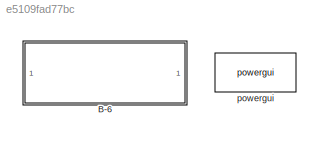
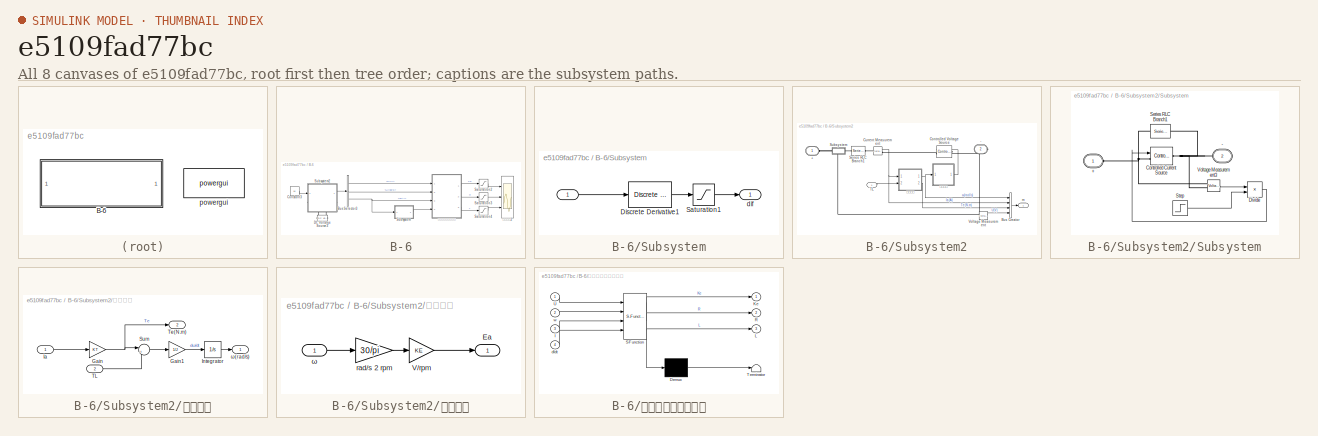
[diagram: thumbnail index - all 8 canvases of the model, root first then tree order]
MODEL slx_e5109fad77bc
KIND model
CONFIG AbsTol = auto
CONFIG EnableMultiTasking = off
CONFIG FixedStep = auto
CONFIG MaxStep = 1e-4
CONFIG MinStep = auto
CONFIG RelTol = 1e-6
CONFIG SampleTimeConstraint = Unconstrained
CONFIG Solver = VariableStepAuto
CONFIG SolverName = VariableStepAuto
CONFIG StartTime = 0.0
CONFIG StopFcn = %CELEC_plot;
CONFIG StopTime = 1
BLOCK [SubSystem] B-6
  Ports = []
  RequestExecContextInheritance = off
BLOCK [BusSelector] B-6/Bus Selector3
  OutputAsBus = off
  OutputSignals = U(V),ω(rad/s),Ia(A)
  Ports = [1, 3]
BLOCK [Constant] B-6/Constant3
  Value = 10
BLOCK [Reference] B-6/DC Voltage Source3  REF=powerlib/Electrical
Sources/DC Voltage Source
  Ports = [0, 0, 0, 0, 0, 1, 1]
  SourceBlock = powerlib/Electrical\nSources/DC Voltage Source
  SourceProductBaseCode = PS
  SourceProductName = Simscape Power Systems
  SourceType = DC Voltage Source
BLOCK [Saturate] B-6/Saturation2
  InputPortMap = u0
  LowerLimit = 0
  Ports = [1, 1]
  UpperLimit = 5
BLOCK [Saturate] B-6/Saturation3
  InputPortMap = u0
  LowerLimit = 0
  Ports = [1, 1]
  UpperLimit = 5
BLOCK [Saturate] B-6/Saturation4
  InputPortMap = u0
  LowerLimit = 0
  Ports = [1, 1]
  UpperLimit = 0.1
BLOCK [SubSystem] B-6/Subsystem
  Ports = [1, 1]
  RequestExecContextInheritance = off
BLOCK [Inport] B-6/Subsystem/ 
  IconDisplay = Port number
BLOCK [Reference] B-6/Subsystem/Discrete Derivative1  REF=simulink/Discrete/Discrete Derivative
  Ports = [1, 1]
  SourceBlock = simulink/Discrete/Discrete Derivative
  SourceProductBaseCode = SL
  SourceProductName = Simulink
  SourceType = Discrete Derivative
BLOCK [Saturate] B-6/Subsystem/Saturation1
  InputPortMap = u0
  LowerLimit = -1000
  Ports = [1, 1]
  UpperLimit = 1000
BLOCK [Outport] B-6/Subsystem/dif
  IconDisplay = Port number
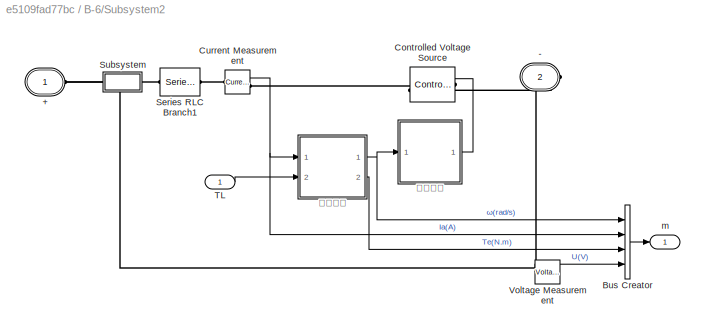
BLOCK [SubSystem] B-6/Subsystem2
  Ports = [1, 1, 0, 0, 0, 1, 1]
  RequestExecContextInheritance = off
BLOCK [PMIOPort] B-6/Subsystem2/+
  Side = Left
  Tag = PMCPort
BLOCK [PMIOPort] B-6/Subsystem2/-
  Port = 2
  Side = Right
  Tag = PMCPort
BLOCK [BusCreator] B-6/Subsystem2/Bus Creator
  DisplayOption = bar
  InheritFromInputs = on
  Inputs = 4
  Ports = [4, 1]
BLOCK [Reference] B-6/Subsystem2/Controlled Voltage Source  REF=powerlib/Electrical
Sources/Controlled Voltage Source
  Ports = [1, 0, 0, 0, 0, 1, 1]
  SourceBlock = powerlib/Electrical\nSources/Controlled Voltage Source
  SourceProductBaseCode = PS
  SourceProductName = Simscape Power Systems
  SourceType = Controlled Voltage Source
BLOCK [Reference] B-6/Subsystem2/Current Measurement  REF=powerlib/Measurements/Current Measurement
  Ports = [0, 1, 0, 0, 0, 1, 1]
  SourceBlock = powerlib/Measurements/Current Measurement
  SourceProductBaseCode = PS
  SourceProductName = Simscape Power Systems
  SourceType = Current Measurement
  UserDataPersistent = on
BLOCK [Reference] B-6/Subsystem2/Series RLC Branch1  REF=powerlib/Elements/Series RLC Branch
  Ports = [0, 0, 0, 0, 0, 1, 1]
  SourceBlock = powerlib/Elements/Series RLC Branch
  SourceProductBaseCode = PS
  SourceProductName = Simscape Power Systems
  SourceType = Series RLC Branch
BLOCK [SubSystem] B-6/Subsystem2/Subsystem
  Ports = [0, 0, 0, 0, 0, 1, 1]
  RequestExecContextInheritance = off
BLOCK [PMIOPort] B-6/Subsystem2/Subsystem/+
  Side = Left
  Tag = PMCPort
BLOCK [PMIOPort] B-6/Subsystem2/Subsystem/-
  Port = 2
  Side = Right
  Tag = PMCPort
BLOCK [Reference] B-6/Subsystem2/Subsystem/Controlled Current Source  REF=powerlib/Electrical
Sources/Controlled Current Source
  Ports = [1, 0, 0, 0, 0, 1, 1]
  SourceBlock = powerlib/Electrical\nSources/Controlled Current Source
  SourceProductBaseCode = PS
  SourceProductName = Simscape Power Systems
  SourceType = Controlled Current Source
BLOCK [Product] B-6/Subsystem2/Subsystem/Divide
  InputSameDT = off
  Inputs = */
  OutDataTypeStr = Inherit: Inherit via internal rule
  Ports = [2, 1]
  RndMeth = Floor
  SaturateOnIntegerOverflow = off
BLOCK [Reference] B-6/Subsystem2/Subsystem/Series RLC Branch1  REF=powerlib/Elements/Series RLC Branch
  Ports = [0, 0, 0, 0, 0, 1, 1]
  SourceBlock = powerlib/Elements/Series RLC Branch
  SourceProductBaseCode = PS
  SourceProductName = Simscape Power Systems
  SourceType = Series RLC Branch
BLOCK [Step] B-6/Subsystem2/Subsystem/Step
  After = R*2
  Before = R
  SampleTime = 0
  Time = 0.5
BLOCK [Reference] B-6/Subsystem2/Subsystem/Voltage Measurement3  REF=powerlib/Measurements/Voltage Measurement
  Ports = [0, 1, 0, 0, 0, 2]
  SourceBlock = powerlib/Measurements/Voltage Measurement
  SourceProductBaseCode = PS
  SourceProductName = Simscape Power Systems
  SourceType = Voltage Measurement
  UserDataPersistent = on
BLOCK [Inport] B-6/Subsystem2/TL
  IconDisplay = Port number
BLOCK [Reference] B-6/Subsystem2/Voltage Measurement  REF=powerlib/Measurements/Voltage Measurement
  Ports = [0, 1, 0, 0, 0, 2]
  SourceBlock = powerlib/Measurements/Voltage Measurement
  SourceProductBaseCode = PS
  SourceProductName = Simscape Power Systems
  SourceType = Voltage Measurement
  UserDataPersistent = on
BLOCK [Outport] B-6/Subsystem2/m
  IconDisplay = Port number
BLOCK [SubSystem] B-6/Subsystem2/机械方程
  Ports = [2, 2]
  RequestExecContextInheritance = off
BLOCK [Gain] B-6/Subsystem2/机械方程/Gain
  Gain = KT
  OutDataTypeStr = Inherit: Inherit via internal rule
  ParamDataTypeStr = Inherit: Inherit via internal rule
  SaturateOnIntegerOverflow = off
BLOCK [Gain] B-6/Subsystem2/机械方程/Gain1
  Gain = 1/J
  OutDataTypeStr = Inherit: Inherit via internal rule
  ParamDataTypeStr = Inherit: Inherit via internal rule
  SaturateOnIntegerOverflow = off
BLOCK [Inport] B-6/Subsystem2/机械方程/Ia
  IconDisplay = Port number
BLOCK [Integrator] B-6/Subsystem2/机械方程/Integrator
  Ports = [1, 1]
BLOCK [Sum] B-6/Subsystem2/机械方程/Sum
  IconShape = round
  InputSameDT = off
  Inputs = |+-
  OutDataTypeStr = Inherit: Inherit via internal rule
  Ports = [2, 1]
  SaturateOnIntegerOverflow = off
BLOCK [Inport] B-6/Subsystem2/机械方程/TL
  IconDisplay = Port number
  Port = 2
BLOCK [Outport] B-6/Subsystem2/机械方程/Te(N.m)
  IconDisplay = Port number
  Port = 2
BLOCK [Outport] B-6/Subsystem2/机械方程/ω(rad//s)
  IconDisplay = Port number
BLOCK [SubSystem] B-6/Subsystem2/电气方程
  Ports = [1, 1]
  RequestExecContextInheritance = off
BLOCK [Outport] B-6/Subsystem2/电气方程/Ea
  IconDisplay = Port number
BLOCK [Gain] B-6/Subsystem2/电气方程/V//rpm
  Gain = KE
  OutDataTypeStr = Inherit: Inherit via internal rule
  ParamDataTypeStr = Inherit: Inherit via internal rule
  SaturateOnIntegerOverflow = off
BLOCK [Gain] B-6/Subsystem2/电气方程/rad//s 2 rpm
  Gain = 30/pi
  OutDataTypeStr = Inherit: Inherit via internal rule
  ParamDataTypeStr = Inherit: Inherit via internal rule
  SaturateOnIntegerOverflow = off
BLOCK [Inport] B-6/Subsystem2/电气方程/ω
  IconDisplay = Port number
BLOCK [Scope] B-6/参数辨识2
  Floating = off
  NumInputPorts = 3
  Ports = [3]
  ScopeSpecificationString = Simulink.scopes.TimeScopeBlockCfg('CurrentConfiguration', extmgr.ConfigurationSet(extmgr.Configuration('Core','General UI',true),extmgr.Configuration('Core','Source UI',true),extmgr.Configuration('Sources','WiredSimulink',true,'DataLoggingVariableName','ScopeData4'),extmgr.Configuration('Visuals','Time Domain',true,'SerializedDisplays',{struct('MinYLimReal','-0.625','MaxYLimReal','5.625','YLabelRe...<+2761ch>
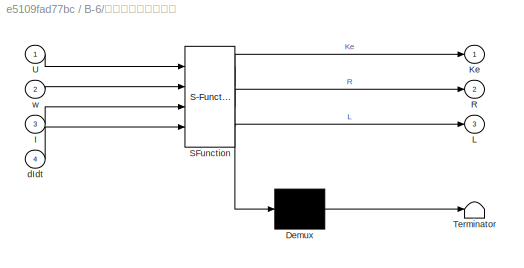
BLOCK [SubSystem] B-6/最小二乘法参数辨识
  ErrorFcn = Stateflow.Translate.translate
  PermitHierarchicalResolution = ExplicitOnly
  Ports = [4, 3]
  RequestExecContextInheritance = off
  SFBlockType = MATLAB Function
  TreatAsAtomicUnit = on
BLOCK [Demux] B-6/最小二乘法参数辨识/ Demux 
  Outputs = 1
  Ports = [1, 1]
BLOCK [S-Function] B-6/最小二乘法参数辨识/ SFunction 
  EnableBusSupport = on
  FunctionName = sf_sfun
  PortCounts = [4 4]
  Ports = [4, 4]
  SFcnIsStateOwnerBlock = off
  SFunctionDeploymentMode = off
  Tag = Stateflow S-Function B_6 2
BLOCK [Terminator] B-6/最小二乘法参数辨识/ Terminator 
BLOCK [Inport] B-6/最小二乘法参数辨识/I
  IconDisplay = Port number
  Port = 3
BLOCK [Outport] B-6/最小二乘法参数辨识/Ke
  IconDisplay = Port number
BLOCK [Outport] B-6/最小二乘法参数辨识/L
  IconDisplay = Port number
  Port = 3
BLOCK [Outport] B-6/最小二乘法参数辨识/R
  IconDisplay = Port number
  Port = 2
BLOCK [Inport] B-6/最小二乘法参数辨识/U
  IconDisplay = Port number
BLOCK [Inport] B-6/最小二乘法参数辨识/dIdt
  IconDisplay = Port number
  Port = 4
BLOCK [Inport] B-6/最小二乘法参数辨识/w
  IconDisplay = Port number
  Port = 2
BLOCK [Reference] powergui  REF=powerlib/powergui
  Ports = []
  Priority = 1
  SourceBlock = powerlib/powergui
  SourceProductBaseCode = PS
  SourceProductName = Simscape Power Systems
  SourceType = PSB option menu block
LINE B-6/Bus Selector3:1 -> B-6/最小二乘法参数辨识:1
LINE B-6/Bus Selector3:2 -> B-6/最小二乘法参数辨识:2
NET B-6/Bus Selector3:3 -> B-6/Subsystem:1, B-6/最小二乘法参数辨识:3
LINE B-6/Constant3:1 -> B-6/Subsystem2:1
LINE B-6/Saturation2:1 -> B-6/参数辨识2:1
LINE B-6/Saturation3:1 -> B-6/参数辨识2:2
LINE B-6/Saturation4:1 -> B-6/参数辨识2:3
LINE B-6/Subsystem/ :1 -> B-6/Subsystem/Discrete Derivative1:1
LINE B-6/Subsystem/Discrete Derivative1:1 -> B-6/Subsystem/Saturation1:1
LINE B-6/Subsystem/Saturation1:1 -> B-6/Subsystem/dif:1
LINE B-6/Subsystem2/Bus Creator:1 -> B-6/Subsystem2/m:1
NET B-6/Subsystem2/Current Measurement:1 -> B-6/Subsystem2/Bus Creator:2, B-6/Subsystem2/机械方程:1
LINE B-6/Subsystem2/Subsystem/Divide:1 -> B-6/Subsystem2/Subsystem/Controlled Current Source:1
LINE B-6/Subsystem2/Subsystem/Step:1 -> B-6/Subsystem2/Subsystem/Divide:2
LINE B-6/Subsystem2/Subsystem/Voltage Measurement3:1 -> B-6/Subsystem2/Subsystem/Divide:1
LINE B-6/Subsystem2/TL:1 -> B-6/Subsystem2/机械方程:2
LINE B-6/Subsystem2/Voltage Measurement:1 -> B-6/Subsystem2/Bus Creator:4
LINE B-6/Subsystem2/机械方程/Gain1:1 -> B-6/Subsystem2/机械方程/Integrator:1
NET B-6/Subsystem2/机械方程/Gain:1 -> B-6/Subsystem2/机械方程/Sum:1, B-6/Subsystem2/机械方程/Te(N.m):1
LINE B-6/Subsystem2/机械方程/Ia:1 -> B-6/Subsystem2/机械方程/Gain:1
LINE B-6/Subsystem2/机械方程/Integrator:1 -> B-6/Subsystem2/机械方程/ω(rad//s):1
LINE B-6/Subsystem2/机械方程/Sum:1 -> B-6/Subsystem2/机械方程/Gain1:1
LINE B-6/Subsystem2/机械方程/TL:1 -> B-6/Subsystem2/机械方程/Sum:2
NET B-6/Subsystem2/机械方程:1 -> B-6/Subsystem2/Bus Creator:1, B-6/Subsystem2/电气方程:1
LINE B-6/Subsystem2/机械方程:2 -> B-6/Subsystem2/Bus Creator:3
LINE B-6/Subsystem2/电气方程/V//rpm:1 -> B-6/Subsystem2/电气方程/Ea:1
LINE B-6/Subsystem2/电气方程/rad//s 2 rpm:1 -> B-6/Subsystem2/电气方程/V//rpm:1
LINE B-6/Subsystem2/电气方程/ω:1 -> B-6/Subsystem2/电气方程/rad//s 2 rpm:1
LINE B-6/Subsystem2/电气方程:1 -> B-6/Subsystem2/Controlled Voltage Source:1
LINE B-6/Subsystem2:1 -> B-6/Bus Selector3:1
LINE B-6/Subsystem:1 -> B-6/最小二乘法参数辨识:4
LINE B-6/最小二乘法参数辨识:1 -> B-6/Saturation2:1
LINE B-6/最小二乘法参数辨识:2 -> B-6/Saturation3:1
LINE B-6/最小二乘法参数辨识:3 -> B-6/Saturation4:1
PLINE B-6/DC Voltage Source3:LConn1 -- B-6/Subsystem2:RConn1
PLINE B-6/DC Voltage Source3:RConn1 -- B-6/Subsystem2:LConn1
PNET net1: B-6/Subsystem2/+:RConn1 -- B-6/Subsystem2/Subsystem:LConn1 -- B-6/Subsystem2/Voltage Measurement:LConn1
PNET net2: B-6/Subsystem2/-:RConn1 -- B-6/Subsystem2/Controlled Voltage Source:LConn1 -- B-6/Subsystem2/Voltage Measurement:LConn2
PLINE B-6/Subsystem2/Controlled Voltage Source:RConn1 -- B-6/Subsystem2/Current Measurement:RConn1
PLINE B-6/Subsystem2/Current Measurement:LConn1 -- B-6/Subsystem2/Series RLC Branch1:RConn1
PLINE B-6/Subsystem2/Series RLC Branch1:LConn1 -- B-6/Subsystem2/Subsystem:RConn1
PNET net3: B-6/Subsystem2/Subsystem/+:RConn1 -- B-6/Subsystem2/Subsystem/Controlled Current Source:LConn1 -- B-6/Subsystem2/Subsystem/Series RLC Branch1:LConn1 -- B-6/Subsystem2/Subsystem/Voltage Measurement3:LConn1
PNET net4: B-6/Subsystem2/Subsystem/-:RConn1 -- B-6/Subsystem2/Subsystem/Controlled Current Source:RConn1 -- B-6/Subsystem2/Subsystem/Series RLC Branch1:RConn1 -- B-6/Subsystem2/Subsystem/Voltage Measurement3:LConn2
note: NET lines group one-source signal fan-out (src -> all destinations, sorted); 1:1 wires keep LINE; PNET lines group multi-terminal physical nets as a canonical sorted terminal list (undirected conserving connections); 2-terminal nets keep the pairwise PLINE form
CHART B-6/最小二乘法参数辨识 states=1 transitions=1
  STATE_LABEL 'eML_blk_kernel()'
  STATE_LABEL "SCRIPT:\nfunction [Ke,R,L] = CELEC_RLS(U,w,I,dIdt)\n\npersistent P theta P_1 theta_1\nif isempty(P_1),          P_1 = 1e4*eye(3); end\nif isempty(theta_1),  theta_1 = [0 0 0]'  ; end\n\nr=0.99;\nphi = [w*30/pi I dIdt]';\ny = U;\nK = P_1*phi/(phi'*P_1*phi+r*eye(1));\nP = (eye(3)-K*phi')*P_1/r;\n\ne = y - phi'*theta_1;\ntheta = theta_1 + K*e;\n\nP_1 = P;\ntheta_1 = theta;\n\nKe=theta(1);\nR =theta(2);\nL =theta(3);\nend\n"
